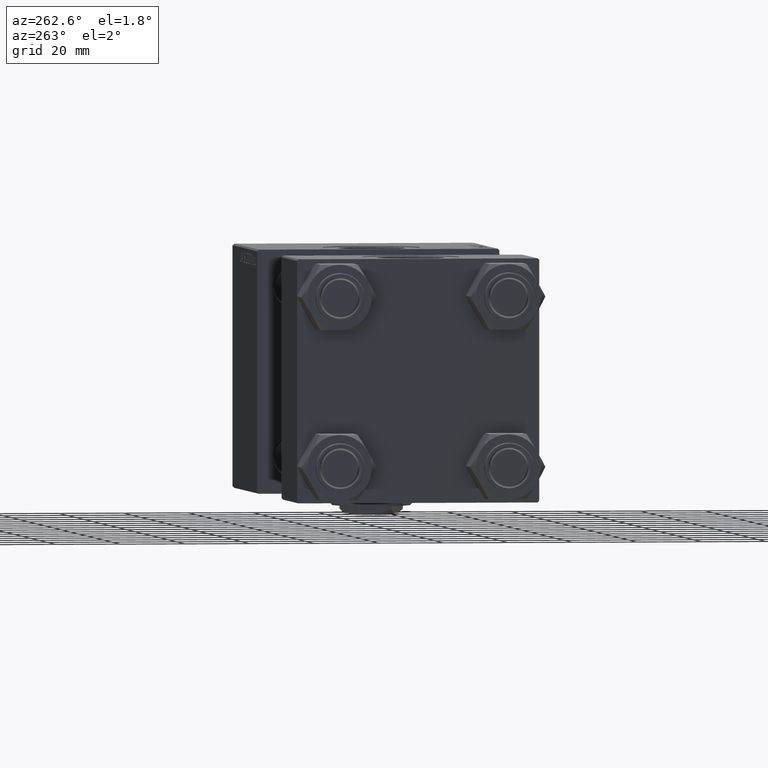
[diagram: clean part render]
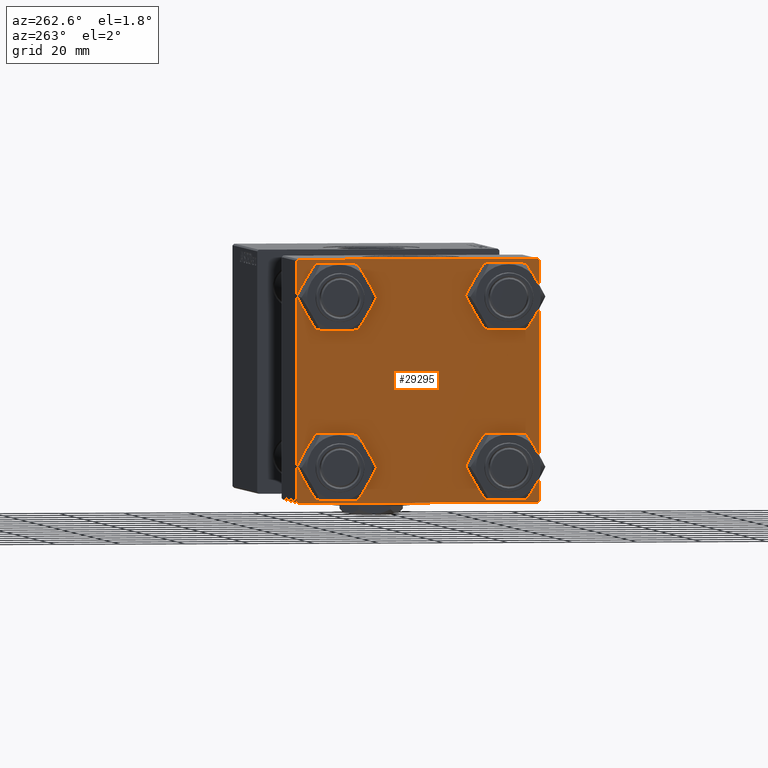
[diagram: same view with one face highlighted and labeled with its STEP entity id]
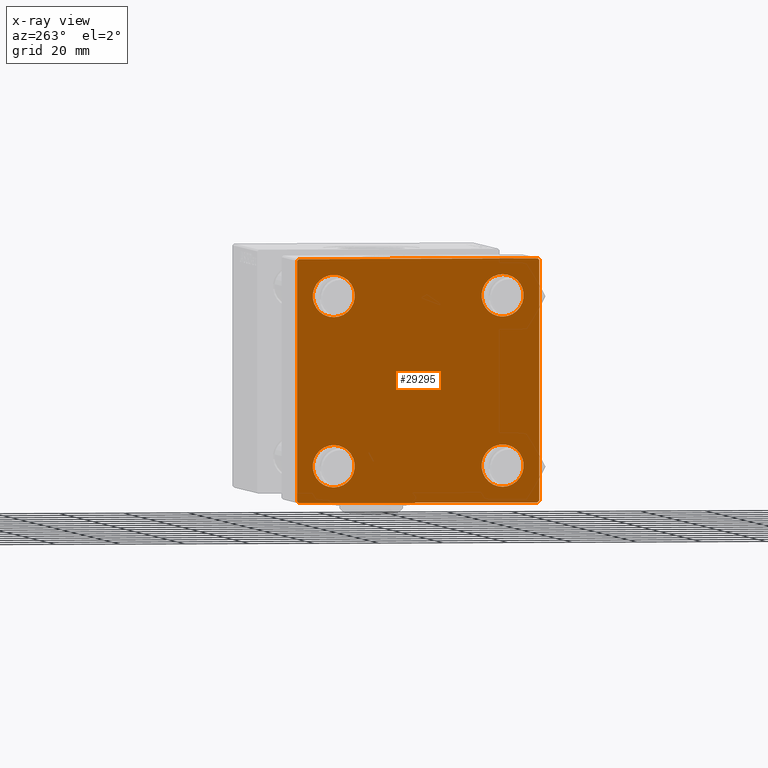
[diagram: x-ray of the same camera — body ghosted, the highlighted face saturated]
A machine part, auxiliary view. The second image highlights one B-rep face of the part: STEP entity #29295.
The next image is the same camera in x-ray: the body ghosted, the highlighted face saturated — about 0% of this face is hidden behind the body in this view.
In plain terms, the highlighted planar face has unit normal (-1, 0, 0).
Its self-contained STEP definition (entity closure, byte-faithful):
#11 = LINE ( 'NONE', #24939, #22049 ) ;
#360 = VERTEX_POINT ( 'NONE', #31763 ) ;
#478 = DIRECTION ( 'NONE',  ( 1.000000000000000000, -0.000000000000000000, 0.000000000000000000 ) ) ;
#696 = DIRECTION ( 'NONE',  ( 0.000000000000000000, 0.000000000000000000, 1.000000000000000000 ) ) ;
#1361 = CARTESIAN_POINT ( 'NONE',  ( 0.000000000000000000, 37.24999999999999289, 37.24999999999999289 ) ) ;
#2010 = EDGE_LOOP ( 'NONE', ( #12947, #36297 ) ) ;
#2886 = CARTESIAN_POINT ( 'NONE',  ( 0.000000000000000000, -26.14999999999999147, -32.65000000000002700 ) ) ;
#3227 = CARTESIAN_POINT ( 'NONE',  ( 0.000000000000000000, 26.14999999999999858, 19.64999999999998437 ) ) ;
#3505 = EDGE_LOOP ( 'NONE', ( #48644, #13353 ) ) ;
#3687 = VERTEX_POINT ( 'NONE', #42550 ) ;
#5495 = DIRECTION ( 'NONE',  ( 1.000000000000000000, -0.000000000000000000, 0.000000000000000000 ) ) ;
#5655 = LINE ( 'NONE', #28784, #42808 ) ;
#5865 = CARTESIAN_POINT ( 'NONE',  ( 0.000000000000000000, 26.14999999999999858, -19.64999999999998792 ) ) ;
#6341 = AXIS2_PLACEMENT_3D ( 'NONE', #6811, #50121, #45915 ) ;
#6811 = CARTESIAN_POINT ( 'NONE',  ( 0.000000000000000000, 26.14999999999999858, -26.15000000000000213 ) ) ;
#7325 = EDGE_CURVE ( 'NONE', #21859, #49853, #49134, .T. ) ;
#7345 = AXIS2_PLACEMENT_3D ( 'NONE', #11098, #18717, #14782 ) ;
#7566 = AXIS2_PLACEMENT_3D ( 'NONE', #45140, #5495, #37246 ) ;
#8744 = ORIENTED_EDGE ( 'NONE', *, *, #9544, .F. ) ;
#8876 = EDGE_CURVE ( 'NONE', #22551, #17250, #36260, .T. ) ;
#8893 = DIRECTION ( 'NONE',  ( 0.000000000000000000, -0.7071067811865524577, 0.7071067811865426878 ) ) ;
#9544 = EDGE_CURVE ( 'NONE', #21859, #49340, #40924, .T. ) ;
#9754 = DIRECTION ( 'NONE',  ( 0.000000000000000000, 0.000000000000000000, 1.000000000000000000 ) ) ;
#11098 = CARTESIAN_POINT ( 'NONE',  ( 0.000000000000000000, -26.14999999999999147, 26.15000000000000924 ) ) ;
#11210 = CARTESIAN_POINT ( 'NONE',  ( 0.000000000000000000, 26.14999999999999858, -26.15000000000000213 ) ) ;
#12302 = VERTEX_POINT ( 'NONE', #21289 ) ;
#12337 = CARTESIAN_POINT ( 'NONE',  ( 0.000000000000000000, 37.49999999999999289, 37.50000000000000000 ) ) ;
#12687 = VERTEX_POINT ( 'NONE', #31354 ) ;
#12947 = ORIENTED_EDGE ( 'NONE', *, *, #50802, .T. ) ;
#13353 = ORIENTED_EDGE ( 'NONE', *, *, #8876, .T. ) ;
#14382 = CARTESIAN_POINT ( 'NONE',  ( 0.000000000000000000, -26.14999999999999147, -26.15000000000000924 ) ) ;
#14437 = EDGE_CURVE ( 'NONE', #17250, #22551, #18056, .T. ) ;
#14515 = FACE_BOUND ( 'NONE', #2010, .T. ) ;
#14782 = DIRECTION ( 'NONE',  ( 0.000000000000000000, 0.000000000000000000, 1.000000000000000000 ) ) ;
#15372 = ORIENTED_EDGE ( 'NONE', *, *, #7325, .T. ) ;
#15736 = EDGE_CURVE ( 'NONE', #44429, #23072, #25419, .T. ) ;
#16339 = VERTEX_POINT ( 'NONE', #40781 ) ;
#16930 = ORIENTED_EDGE ( 'NONE', *, *, #39532, .T. ) ;
#17250 = VERTEX_POINT ( 'NONE', #5865 ) ;
#18056 = CIRCLE ( 'NONE', #6341, 6.500000000000015987 ) ;
#18717 = DIRECTION ( 'NONE',  ( 1.000000000000000000, -0.000000000000000000, 0.000000000000000000 ) ) ;
#20613 = CARTESIAN_POINT ( 'NONE',  ( 0.000000000000000000, 36.99999999999999289, 37.50000000000000000 ) ) ;
#20645 = DIRECTION ( 'NONE',  ( 1.000000000000000000, -0.000000000000000000, 0.000000000000000000 ) ) ;
#20647 = AXIS2_PLACEMENT_3D ( 'NONE', #14382, #30393, #30645 ) ;
#20736 = VECTOR ( 'NONE', #40511, 1000.000000000000000 ) ;
#20962 = CARTESIAN_POINT ( 'NONE',  ( 0.000000000000000000, 26.14999999999999858, 26.15000000000000213 ) ) ;
#21289 = CARTESIAN_POINT ( 'NONE',  ( 0.000000000000000000, -26.14999999999999147, -19.64999999999999503 ) ) ;
#21642 = EDGE_LOOP ( 'NONE', ( #42765, #49646, #44441, #50432, #42020, #32821, #8744, #15372 ) ) ;
#21656 = CARTESIAN_POINT ( 'NONE',  ( -0.000000000000000000, -37.25000000000000000, 37.25000000000000000 ) ) ;
#21859 = VERTEX_POINT ( 'NONE', #20613 ) ;
#22049 = VECTOR ( 'NONE', #51699, 1000.000000000000114 ) ;
#22400 = PLANE ( 'NONE',  #22456 ) ;
#22456 = AXIS2_PLACEMENT_3D ( 'NONE', #49685, #30526, #34448 ) ;
#22551 = VERTEX_POINT ( 'NONE', #41451 ) ;
#22615 = CARTESIAN_POINT ( 'NONE',  ( 0.000000000000000000, 26.14999999999999858, 32.65000000000002700 ) ) ;
#23072 = VERTEX_POINT ( 'NONE', #35511 ) ;
#23816 = CARTESIAN_POINT ( 'NONE',  ( 0.000000000000000000, -37.00000000000000711, 37.49999999999999289 ) ) ;
#23820 = DIRECTION ( 'NONE',  ( 1.000000000000000000, -0.000000000000000000, 0.000000000000000000 ) ) ;
#23835 = EDGE_CURVE ( 'NONE', #51127, #42336, #40805, .T. ) ;
#24253 = CIRCLE ( 'NONE', #28447, 6.500000000000023093 ) ;
#24846 = CARTESIAN_POINT ( 'NONE',  ( 0.000000000000000000, 26.14999999999999858, 26.15000000000000213 ) ) ;
#24939 = CARTESIAN_POINT ( 'NONE',  ( 0.000000000000000000, 37.24999999999998579, -37.24999999999998579 ) ) ;
#25419 = LINE ( 'NONE', #33529, #43912 ) ;
#25507 = LINE ( 'NONE', #41499, #49234 ) ;
#25535 = ORIENTED_EDGE ( 'NONE', *, *, #23835, .T. ) ;
#27786 = ORIENTED_EDGE ( 'NONE', *, *, #28858, .T. ) ;
#27940 = CARTESIAN_POINT ( 'NONE',  ( 0.000000000000000000, -26.14999999999999147, 19.64999999999999147 ) ) ;
#28287 = EDGE_CURVE ( 'NONE', #360, #44429, #28715, .T. ) ;
#28346 = DIRECTION ( 'NONE',  ( 0.000000000000000000, -1.000000000000000000, -9.251858538542971581E-17 ) ) ;
#28447 = AXIS2_PLACEMENT_3D ( 'NONE', #45700, #37303, #9754 ) ;
#28715 = LINE ( 'NONE', #40768, #20736 ) ;
#28784 = CARTESIAN_POINT ( 'NONE',  ( 0.000000000000000000, -37.50000000000000711, 37.49999999999999289 ) ) ;
#28858 = EDGE_CURVE ( 'NONE', #42336, #51127, #50904, .T. ) ;
#29295 = ADVANCED_FACE ( 'NONE', ( #14515, #37595, #33663, #34702, #50709 ), #22400, .T. ) ;
#29714 = VERTEX_POINT ( 'NONE', #2886 ) ;
#30201 = CIRCLE ( 'NONE', #7566, 6.500000000000015987 ) ;
#30393 = DIRECTION ( 'NONE',  ( 1.000000000000000000, -0.000000000000000000, 0.000000000000000000 ) ) ;
#30526 = DIRECTION ( 'NONE',  ( -1.000000000000000000, 0.000000000000000000, -0.000000000000000000 ) ) ;
#30645 = DIRECTION ( 'NONE',  ( 0.000000000000000000, 0.000000000000000000, 1.000000000000000000 ) ) ;
#31354 = CARTESIAN_POINT ( 'NONE',  ( 0.000000000000000000, -37.50000000000000711, 36.99999999999999289 ) ) ;
#31590 = AXIS2_PLACEMENT_3D ( 'NONE', #20962, #478, #41397 ) ;
#31763 = CARTESIAN_POINT ( 'NONE',  ( 0.000000000000000000, 36.99999999999997868, -37.50000000000000000 ) ) ;
#32821 = ORIENTED_EDGE ( 'NONE', *, *, #35524, .T. ) ;
#33150 = EDGE_CURVE ( 'NONE', #37384, #16339, #24253, .T. ) ;
#33452 = LINE ( 'NONE', #21656, #47797 ) ;
#33529 = CARTESIAN_POINT ( 'NONE',  ( 0.000000000000000000, -37.24999999999975842, -37.25000000000027001 ) ) ;
#33623 = DIRECTION ( 'NONE',  ( 0.000000000000000000, 0.000000000000000000, -1.000000000000000000 ) ) ;
#33663 = FACE_BOUND ( 'NONE', #3505, .T. ) ;
#34448 = DIRECTION ( 'NONE',  ( -0.000000000000000000, 0.000000000000000000, 1.000000000000000000 ) ) ;
#34702 = FACE_BOUND ( 'NONE', #51012, .T. ) ;
#35358 = VECTOR ( 'NONE', #38338, 1000.000000000000114 ) ;
#35511 = CARTESIAN_POINT ( 'NONE',  ( 0.000000000000000000, -37.50000000000000000, -37.00000000000003553 ) ) ;
#35524 = EDGE_CURVE ( 'NONE', #12687, #49340, #33452, .T. ) ;
#35813 = AXIS2_PLACEMENT_3D ( 'NONE', #24846, #20645, #696 ) ;
#36260 = CIRCLE ( 'NONE', #43796, 6.500000000000015987 ) ;
#36297 = ORIENTED_EDGE ( 'NONE', *, *, #33150, .T. ) ;
#37117 = VECTOR ( 'NONE', #28346, 1000.000000000000000 ) ;
#37184 = EDGE_CURVE ( 'NONE', #12687, #23072, #5655, .T. ) ;
#37246 = DIRECTION ( 'NONE',  ( 0.000000000000000000, 0.000000000000000000, 1.000000000000000000 ) ) ;
#37303 = DIRECTION ( 'NONE',  ( 1.000000000000000000, -0.000000000000000000, 0.000000000000000000 ) ) ;
#37384 = VERTEX_POINT ( 'NONE', #27940 ) ;
#37595 = FACE_BOUND ( 'NONE', #39789, .T. ) ;
#37656 = DIRECTION ( 'NONE',  ( 0.000000000000000000, 9.251858538542971581E-17, -1.000000000000000000 ) ) ;
#38338 = DIRECTION ( 'NONE',  ( 0.000000000000000000, 0.7071067811865474617, -0.7071067811865474617 ) ) ;
#39532 = EDGE_CURVE ( 'NONE', #12302, #29714, #30201, .T. ) ;
#39789 = EDGE_LOOP ( 'NONE', ( #16930, #47000 ) ) ;
#40511 = DIRECTION ( 'NONE',  ( 0.000000000000000000, -1.000000000000000000, -9.251858538542972814E-17 ) ) ;
#40768 = CARTESIAN_POINT ( 'NONE',  ( 0.000000000000000000, 37.49999999999999289, -37.50000000000000000 ) ) ;
#40781 = CARTESIAN_POINT ( 'NONE',  ( 0.000000000000000000, -26.14999999999999147, 32.65000000000003411 ) ) ;
#40805 = CIRCLE ( 'NONE', #31590, 6.500000000000023093 ) ;
#40924 = LINE ( 'NONE', #12337, #37117 ) ;
#41397 = DIRECTION ( 'NONE',  ( 0.000000000000000000, 0.000000000000000000, 1.000000000000000000 ) ) ;
#41451 = CARTESIAN_POINT ( 'NONE',  ( 0.000000000000000000, 26.14999999999999858, -32.65000000000001990 ) ) ;
#41499 = CARTESIAN_POINT ( 'NONE',  ( 0.000000000000000000, 37.49999999999999289, 37.50000000000000000 ) ) ;
#42020 = ORIENTED_EDGE ( 'NONE', *, *, #37184, .F. ) ;
#42336 = VERTEX_POINT ( 'NONE', #3227 ) ;
#42550 = CARTESIAN_POINT ( 'NONE',  ( 0.000000000000000000, 37.49999999999999289, -36.99999999999998579 ) ) ;
#42629 = EDGE_CURVE ( 'NONE', #3687, #360, #11, .T. ) ;
#42704 = DIRECTION ( 'NONE',  ( 0.000000000000000000, 0.000000000000000000, 1.000000000000000000 ) ) ;
#42765 = ORIENTED_EDGE ( 'NONE', *, *, #51035, .T. ) ;
#42808 = VECTOR ( 'NONE', #37656, 1000.000000000000000 ) ;
#43095 = CARTESIAN_POINT ( 'NONE',  ( 0.000000000000000000, 37.49999999999999289, 37.00000000000000000 ) ) ;
#43287 = CARTESIAN_POINT ( 'NONE',  ( 0.000000000000000000, -37.00000000000002132, -37.50000000000000711 ) ) ;
#43796 = AXIS2_PLACEMENT_3D ( 'NONE', #11210, #23820, #42704 ) ;
#43912 = VECTOR ( 'NONE', #8893, 1000.000000000000000 ) ;
#44429 = VERTEX_POINT ( 'NONE', #43287 ) ;
#44441 = ORIENTED_EDGE ( 'NONE', *, *, #28287, .T. ) ;
#45140 = CARTESIAN_POINT ( 'NONE',  ( 0.000000000000000000, -26.14999999999999147, -26.15000000000000924 ) ) ;
#45700 = CARTESIAN_POINT ( 'NONE',  ( 0.000000000000000000, -26.14999999999999147, 26.15000000000000924 ) ) ;
#45915 = DIRECTION ( 'NONE',  ( 0.000000000000000000, 0.000000000000000000, 1.000000000000000000 ) ) ;
#47000 = ORIENTED_EDGE ( 'NONE', *, *, #48678, .T. ) ;
#47797 = VECTOR ( 'NONE', #49473, 1000.000000000000114 ) ;
#48644 = ORIENTED_EDGE ( 'NONE', *, *, #14437, .T. ) ;
#48678 = EDGE_CURVE ( 'NONE', #29714, #12302, #50824, .T. ) ;
#49134 = LINE ( 'NONE', #1361, #35358 ) ;
#49234 = VECTOR ( 'NONE', #33623, 1000.000000000000000 ) ;
#49340 = VERTEX_POINT ( 'NONE', #23816 ) ;
#49473 = DIRECTION ( 'NONE',  ( -0.000000000000000000, 0.7071067811865474617, 0.7071067811865474617 ) ) ;
#49646 = ORIENTED_EDGE ( 'NONE', *, *, #42629, .T. ) ;
#49685 = CARTESIAN_POINT ( 'NONE',  ( 0.000000000000000000, 0.000000000000000000, 0.000000000000000000 ) ) ;
#49853 = VERTEX_POINT ( 'NONE', #43095 ) ;
#50121 = DIRECTION ( 'NONE',  ( 1.000000000000000000, -0.000000000000000000, 0.000000000000000000 ) ) ;
#50432 = ORIENTED_EDGE ( 'NONE', *, *, #15736, .T. ) ;
#50709 = FACE_OUTER_BOUND ( 'NONE', #21642, .T. ) ;
#50802 = EDGE_CURVE ( 'NONE', #16339, #37384, #51721, .T. ) ;
#50824 = CIRCLE ( 'NONE', #20647, 6.500000000000015987 ) ;
#50904 = CIRCLE ( 'NONE', #35813, 6.500000000000023093 ) ;
#51012 = EDGE_LOOP ( 'NONE', ( #25535, #27786 ) ) ;
#51035 = EDGE_CURVE ( 'NONE', #49853, #3687, #25507, .T. ) ;
#51127 = VERTEX_POINT ( 'NONE', #22615 ) ;
#51699 = DIRECTION ( 'NONE',  ( -0.000000000000000000, -0.7071067811865474617, -0.7071067811865474617 ) ) ;
#51721 = CIRCLE ( 'NONE', #7345, 6.500000000000023093 ) ;